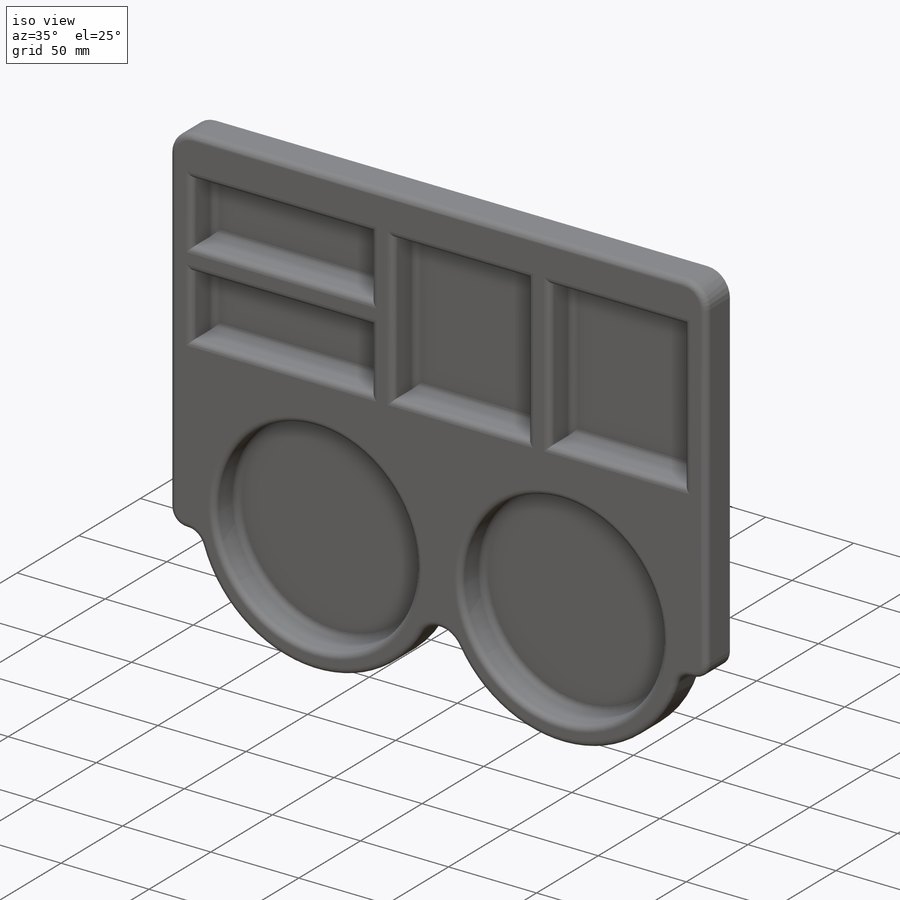
[diagram: iso view]
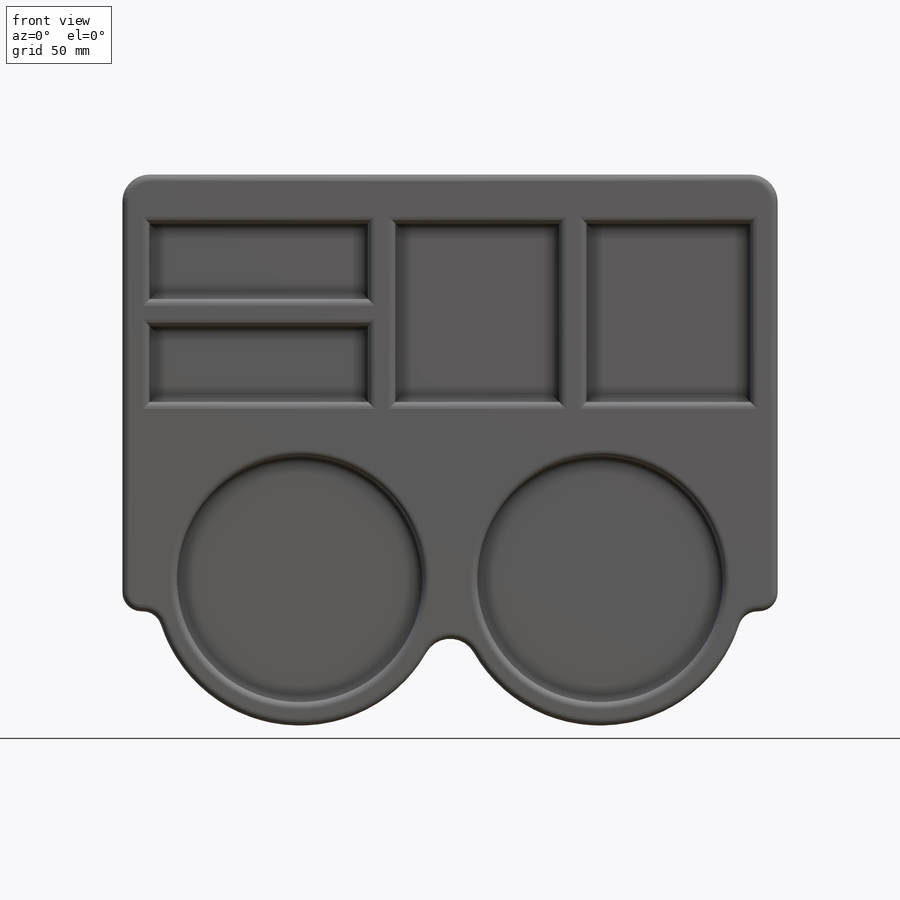
[diagram: front view]
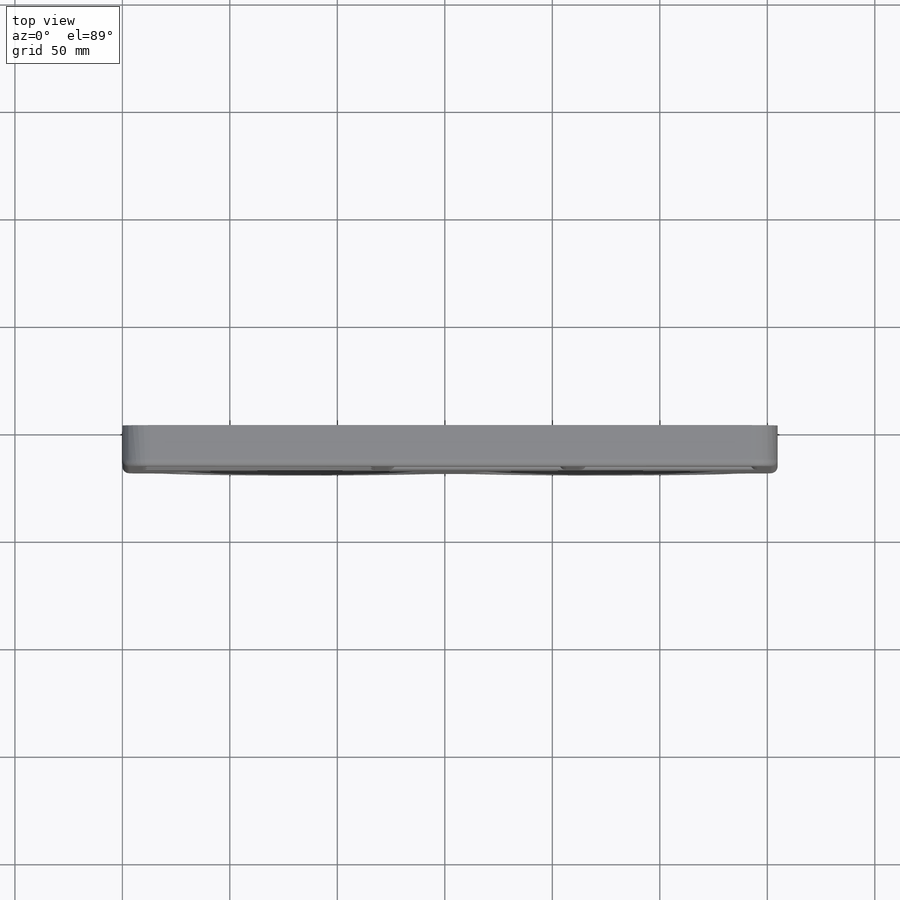
[diagram: top view]
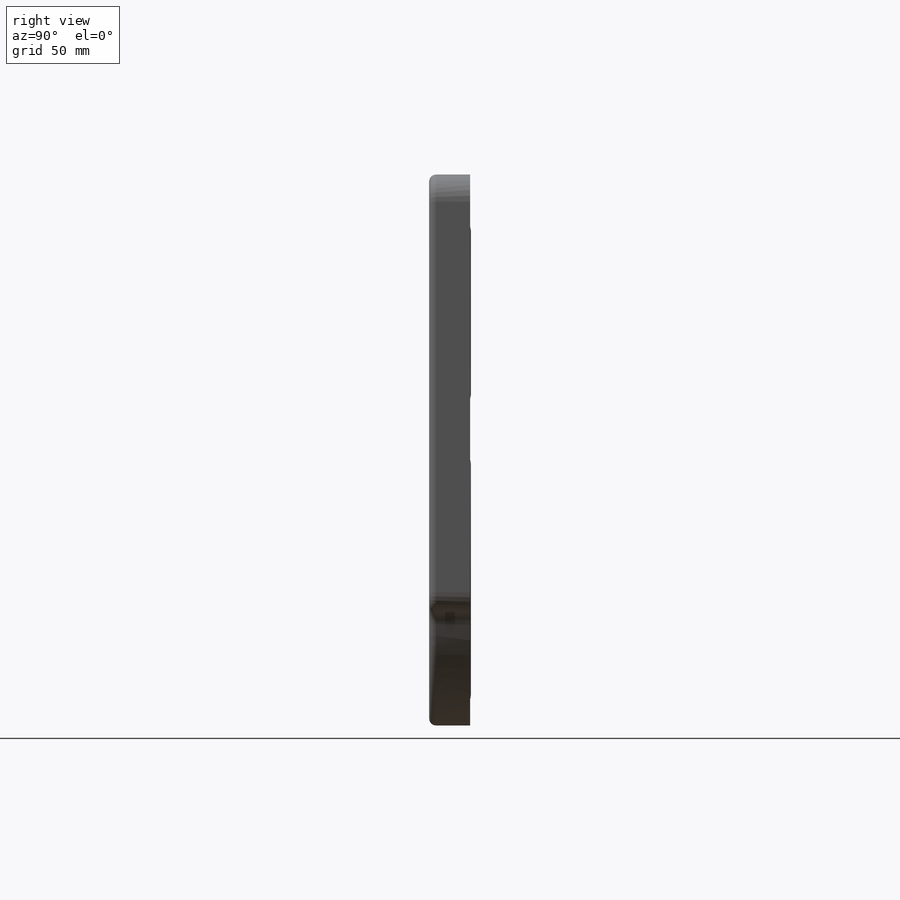
[diagram: right view]
SOLIDWORKS PART (.sldprt)
format: sldprt  version: not decoded by parser v0  size: 543,232 bytes
history: native  units: mm
features: sketch x4, cut_extrude x3, fillet x3, material x1, extrude x1, shell x1 (+11 scaffold rows collapsed)
feature tree (24):
  scaffold x11  (default folders/planes/origin — collapsed)
  material  "Material <not specified>"
  sketch  "Sketch1"  dims[c1.D3=12.7mm c1.D1=304.8mm c1.D2=279.4mm c2.D1=304.8mm]
  extrude  "Boss-Extrude1"  Depth=19.05mm
  sketch  "Sketch2"  dims[D1=114.3mm D2=69.85mm D3=69.85mm]
  cut_extrude  "Cut-Extrude1"  Depth=17.78mm
  sketch  "Sketch4"  dims[D1=135.89mm D3=12.7mm D2=76.2mm]
  cut_extrude  "Cut-Extrude2"  [1 undecoded]
  sketch  "Sketch5"  dims[D1=12.7mm D2=12.7mm D3=101.6mm D4=76.2mm D5=12.7mm D6=12.7mm D7=12.7mm]
  cut_extrude  "Cut-Extrude3"  Depth=17.78mm
  fillet  "Fillet19"  Radius=8.89mm
  fillet  "Fillet18"  Radius=3.175mm
  fillet  "Fillet20"  Radius=3.175mm
  shell  "Shell1"  Thickness=1.5875mm
decode coverage: 11 of 12 modeling features carry decoded parameters
note: 1 parameter value undecoded
note: suppression state not decoded; provenance and decode notes live in map.json
